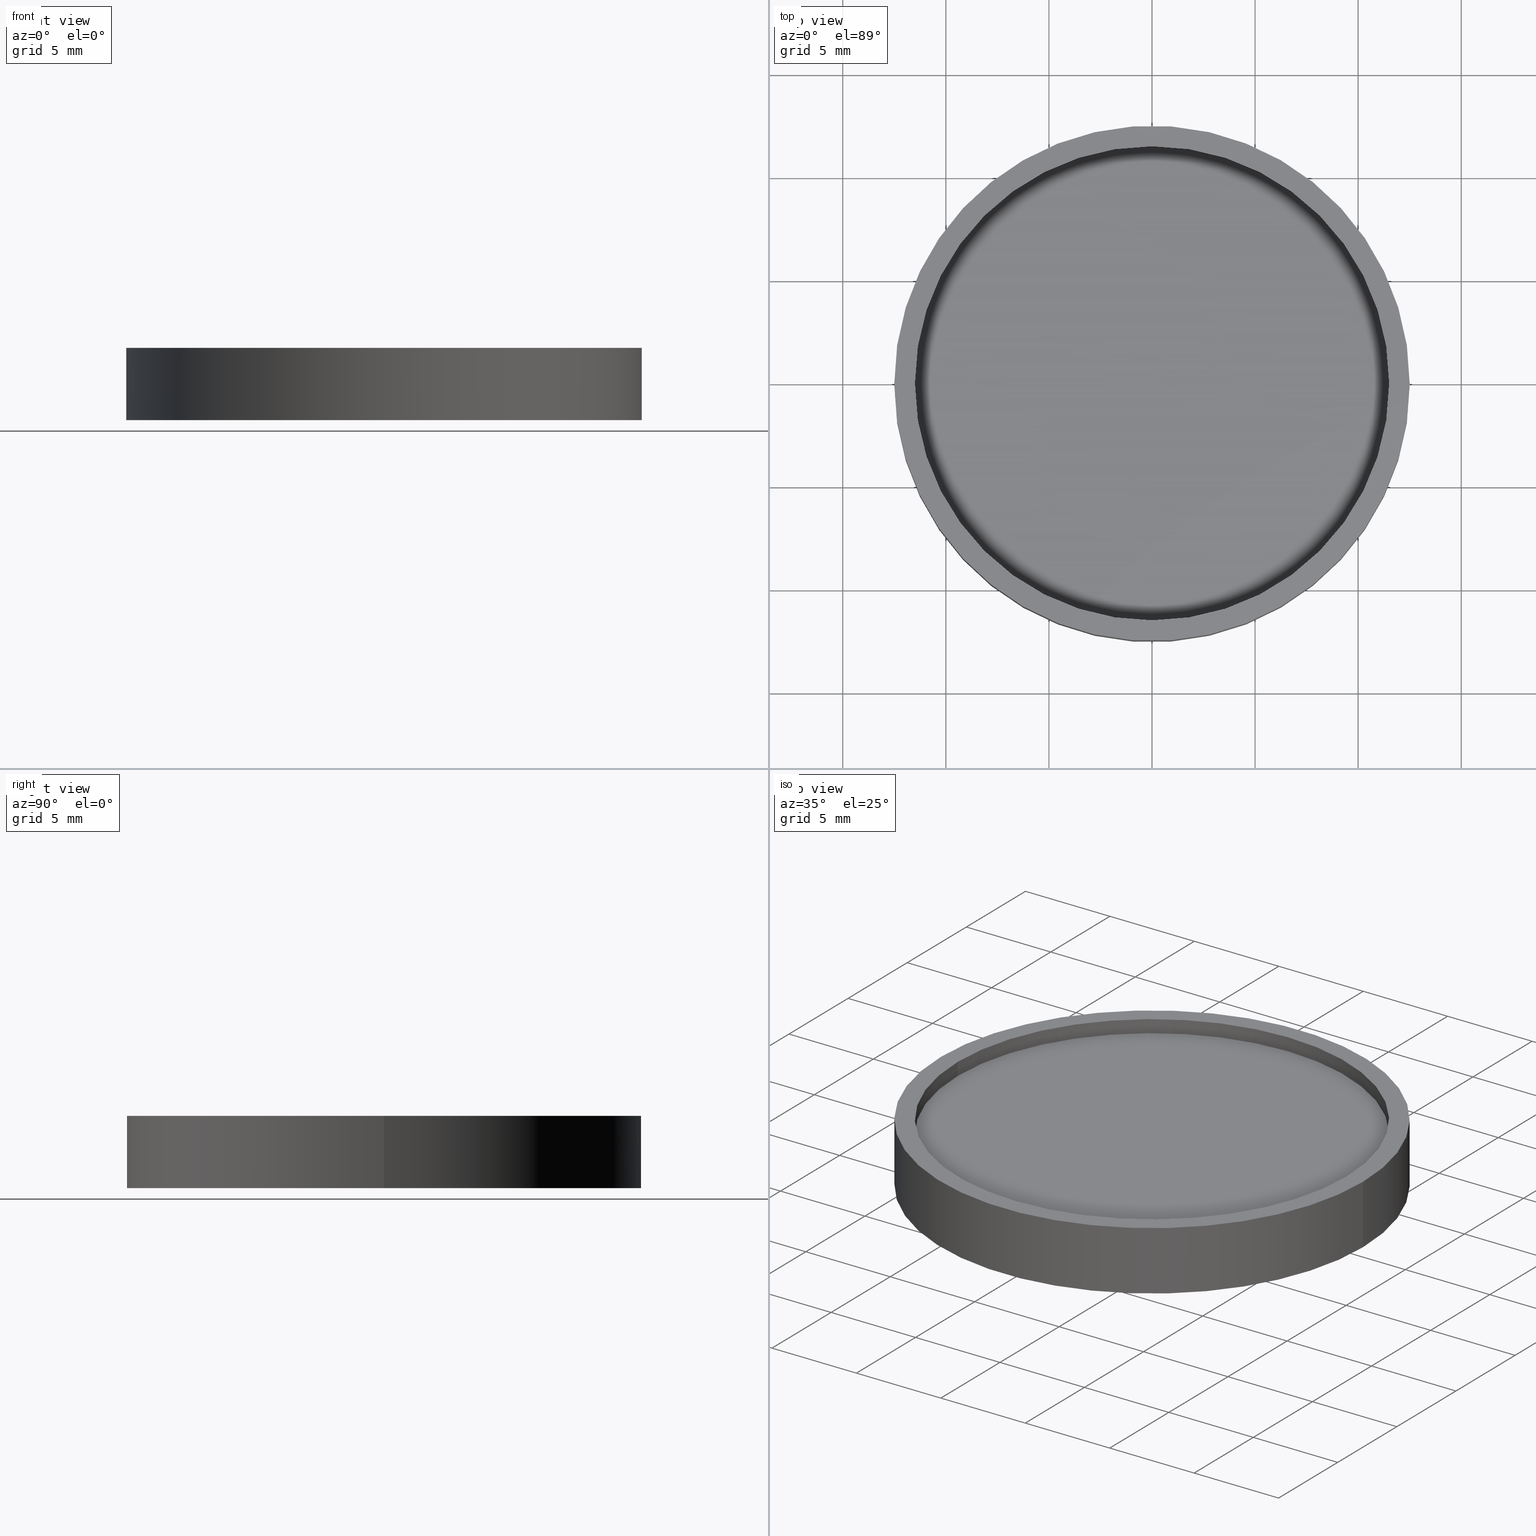
[diagram: canonical four-view strip — front | top / right | iso, engineering-drawing reading convention]
A machine part, canonical four-view strip (front | top / right | iso — engineering-drawing reading convention). The complete STEP part file that produces these views, byte-faithful:
ISO-10303-21;
HEADER;
FILE_DESCRIPTION (( 'STEP AP214' ),
    '1' );
FILE_NAME ('GNIF-020-545-D25.STEP',
    '2024-08-13T06:40:57',
    ( 'Windows User' ),
    ( 'P R C' ),
    'SwSTEP 2.0',
    'SolidWorks 2022',
    '' );
FILE_SCHEMA (( 'AUTOMOTIVE_DESIGN' ));
ENDSEC;

DATA;
#1 = SURFACE_SIDE_STYLE ('',( #417 ) ) ;
#2 =( GEOMETRIC_REPRESENTATION_CONTEXT ( 3 ) GLOBAL_UNCERTAINTY_ASSIGNED_CONTEXT ( ( #205 ) ) GLOBAL_UNIT_ASSIGNED_CONTEXT ( ( #395, #78, #270 ) ) REPRESENTATION_CONTEXT ( 'NONE', 'WORKASPACE' ) );
#3 = STYLED_ITEM ( 'NONE', ( #295 ), #21 ) ;
#4 = SURFACE_STYLE_USAGE ( .BOTH. , #68 ) ;
#5 = AXIS2_PLACEMENT_3D ( 'NONE', #138, #263, #65 ) ;
#6 = PRESENTATION_STYLE_ASSIGNMENT (( #330 ) ) ;
#7 = AXIS2_PLACEMENT_3D ( 'NONE', #103, #171, #297 ) ;
#8 = UNCERTAINTY_MEASURE_WITH_UNIT (LENGTH_MEASURE( 1.000000000000000082E-05 ), #109, 'distance_accuracy_value', 'NONE');
#9 =( NAMED_UNIT ( * ) PLANE_ANGLE_UNIT ( ) SI_UNIT ( $, .RADIAN. ) );
#10 = SURFACE_STYLE_USAGE ( .BOTH. , #104 ) ;
#11 = EDGE_CURVE ( 'NONE', #163, #415, #13, .T. ) ;
#12 = DIRECTION ( 'NONE',  ( 1.000000000000000000, 0.000000000000000000, 0.000000000000000000 ) ) ;
#13 = CIRCLE ( 'NONE', #111, 12.50000000000000000 ) ;
#14 = EDGE_CURVE ( 'NONE', #163, #31, #370, .T. ) ;
#15 = MECHANICAL_DESIGN_GEOMETRIC_PRESENTATION_REPRESENTATION (  '', ( #88 ), #396 ) ;
#16 = SURFACE_SIDE_STYLE ('',( #309 ) ) ;
#17 = FACE_OUTER_BOUND ( 'NONE', #314, .T. ) ;
#18 = FACE_OUTER_BOUND ( 'NONE', #226, .T. ) ;
#19 = ORIENTED_EDGE ( 'NONE', *, *, #14, .T. ) ;
#20 =( NAMED_UNIT ( * ) SI_UNIT ( $, .STERADIAN. ) SOLID_ANGLE_UNIT ( ) );
#21 = ADVANCED_BREP_SHAPE_REPRESENTATION ( 'GNIF-020-545-D25', ( #134, #79 ), #66 ) ;
#22 = DIRECTION ( 'NONE',  ( 0.000000000000000000, 0.000000000000000000, 1.000000000000000000 ) ) ;
#23 = PRODUCT_DEFINITION_FORMATION_WITH_SPECIFIED_SOURCE ( '�κ�', '', #312, .NOT_KNOWN. ) ;
#24 = SURFACE_SIDE_STYLE ('',( #189 ) ) ;
#25 = ORIENTED_EDGE ( 'NONE', *, *, #14, .F. ) ;
#26 = LINE ( 'NONE', #89, #327 ) ;
#27 = CARTESIAN_POINT ( 'NONE',  ( 0.000000000000000000, 0.000000000000000000, 2.750000000000000000 ) ) ;
#28 = ORIENTED_EDGE ( 'NONE', *, *, #34, .T. ) ;
#29 = SURFACE_STYLE_FILL_AREA ( #383 ) ;
#30 = PRESENTATION_STYLE_ASSIGNMENT (( #347 ) ) ;
#31 = VERTEX_POINT ( 'NONE', #97 ) ;
#32 =( GEOMETRIC_REPRESENTATION_CONTEXT ( 3 ) GLOBAL_UNCERTAINTY_ASSIGNED_CONTEXT ( ( #404 ) ) GLOBAL_UNIT_ASSIGNED_CONTEXT ( ( #239, #246, #210 ) ) REPRESENTATION_CONTEXT ( 'NONE', 'WORKASPACE' ) );
#33 =( NAMED_UNIT ( * ) PLANE_ANGLE_UNIT ( ) SI_UNIT ( $, .RADIAN. ) );
#34 = EDGE_CURVE ( 'NONE', #352, #310, #26, .T. ) ;
#35 = AXIS2_PLACEMENT_3D ( 'NONE', #144, #364, #399 ) ;
#36 = FILL_AREA_STYLE_COLOUR ( '', #262 ) ;
#37 = SURFACE_STYLE_FILL_AREA ( #391 ) ;
#38 = MECHANICAL_DESIGN_GEOMETRIC_PRESENTATION_REPRESENTATION (  '', ( #77 ), #147 ) ;
#39 = PRODUCT_CONTEXT ( 'NONE', #130, 'mechanical' ) ;
#40 = CARTESIAN_POINT ( 'NONE',  ( 0.000000000000000000, 0.000000000000000000, 0.000000000000000000 ) ) ;
#41 =( LENGTH_UNIT ( ) NAMED_UNIT ( * ) SI_UNIT ( .MILLI., .METRE. ) );
#42 =( GEOMETRIC_REPRESENTATION_CONTEXT ( 3 ) GLOBAL_UNCERTAINTY_ASSIGNED_CONTEXT ( ( #74 ) ) GLOBAL_UNIT_ASSIGNED_CONTEXT ( ( #92, #283, #345 ) ) REPRESENTATION_CONTEXT ( 'NONE', 'WORKASPACE' ) );
#43 = UNCERTAINTY_MEASURE_WITH_UNIT (LENGTH_MEASURE( 1.000000000000000082E-05 ), #265, 'distance_accuracy_value', 'NONE');
#44 = FILL_AREA_STYLE ('',( #218 ) ) ;
#45 = AXIS2_PLACEMENT_3D ( 'NONE', #27, #22, #224 ) ;
#46 = DIRECTION ( 'NONE',  ( -0.000000000000000000, -0.000000000000000000, 1.000000000000000000 ) ) ;
#47 = PLANE ( 'NONE',  #359 ) ;
#48 = UNCERTAINTY_MEASURE_WITH_UNIT (LENGTH_MEASURE( 1.000000000000000082E-05 ), #41, 'distance_accuracy_value', 'NONE');
#49 = FACE_OUTER_BOUND ( 'NONE', #158, .T. ) ;
#50 = VERTEX_POINT ( 'NONE', #159 ) ;
#51 = SURFACE_SIDE_STYLE ('',( #29 ) ) ;
#52 = FILL_AREA_STYLE_COLOUR ( '', #230 ) ;
#53 = ORIENTED_EDGE ( 'NONE', *, *, #340, .T. ) ;
#54 = DIRECTION ( 'NONE',  ( 1.000000000000000000, 0.000000000000000000, 0.000000000000000000 ) ) ;
#55 = AXIS2_PLACEMENT_3D ( 'NONE', #143, #165, #135 ) ;
#56 = ORIENTED_EDGE ( 'NONE', *, *, #301, .F. ) ;
#57 =( NAMED_UNIT ( * ) PLANE_ANGLE_UNIT ( ) SI_UNIT ( $, .RADIAN. ) );
#58 = ORIENTED_EDGE ( 'NONE', *, *, #388, .F. ) ;
#59 = SURFACE_STYLE_USAGE ( .BOTH. , #243 ) ;
#60 = ORIENTED_EDGE ( 'NONE', *, *, #291, .F. ) ;
#61 = CARTESIAN_POINT ( 'NONE',  ( 0.000000000000000000, 0.000000000000000000, 3.500000000000000000 ) ) ;
#62 = SURFACE_SIDE_STYLE ('',( #289 ) ) ;
#63 = MECHANICAL_DESIGN_GEOMETRIC_PRESENTATION_REPRESENTATION (  '', ( #368 ), #197 ) ;
#64 = CIRCLE ( 'NONE', #300, 12.50000000000000000 ) ;
#65 = DIRECTION ( 'NONE',  ( 1.000000000000000000, 0.000000000000000000, 0.000000000000000000 ) ) ;
#66 =( GEOMETRIC_REPRESENTATION_CONTEXT ( 3 ) GLOBAL_UNCERTAINTY_ASSIGNED_CONTEXT ( ( #80 ) ) GLOBAL_UNIT_ASSIGNED_CONTEXT ( ( #198, #169, #202 ) ) REPRESENTATION_CONTEXT ( 'NONE', 'WORKASPACE' ) );
#67 =( LENGTH_UNIT ( ) NAMED_UNIT ( * ) SI_UNIT ( .MILLI., .METRE. ) );
#68 = SURFACE_SIDE_STYLE ('',( #37 ) ) ;
#69 = STYLED_ITEM ( 'NONE', ( #343 ), #235 ) ;
#70 = CARTESIAN_POINT ( 'NONE',  ( 12.50000000000000000, 1.530808498934191521E-15, 3.500000000000000000 ) ) ;
#71 = PRESENTATION_LAYER_ASSIGNMENT (  '', '', ( #237 ) ) ;
#72 = DIRECTION ( 'NONE',  ( -1.000000000000000000, 0.000000000000000000, 0.000000000000000000 ) ) ;
#73 = VECTOR ( 'NONE', #412, 1000.000000000000000 ) ;
#74 = UNCERTAINTY_MEASURE_WITH_UNIT (LENGTH_MEASURE( 1.000000000000000082E-05 ), #92, 'distance_accuracy_value', 'NONE');
#75 = ADVANCED_FACE ( 'NONE', ( #349 ), #278, .F. ) ;
#76 = DIRECTION ( 'NONE',  ( -1.000000000000000000, 0.000000000000000000, 0.000000000000000000 ) ) ;
#77 = STYLED_ITEM ( 'NONE', ( #6 ), #134 ) ;
#78 =( NAMED_UNIT ( * ) PLANE_ANGLE_UNIT ( ) SI_UNIT ( $, .RADIAN. ) );
#79 = AXIS2_PLACEMENT_3D ( 'NONE', #173, #360, #200 ) ;
#80 = UNCERTAINTY_MEASURE_WITH_UNIT (LENGTH_MEASURE( 1.000000000000000082E-05 ), #198, 'distance_accuracy_value', 'NONE');
#81 =( NAMED_UNIT ( * ) SI_UNIT ( $, .STERADIAN. ) SOLID_ANGLE_UNIT ( ) );
#82 = CARTESIAN_POINT ( 'NONE',  ( 0.000000000000000000, 0.000000000000000000, 3.500000000000000000 ) ) ;
#83 = DIRECTION ( 'NONE',  ( 1.000000000000000000, 0.000000000000000000, 0.000000000000000000 ) ) ;
#84 = COLOUR_RGB ( '',0.2235294117647058654, 0.2235294117647058654, 0.2235294117647058654 ) ;
#85 = COLOUR_RGB ( '',0.2235294117647058654, 0.2235294117647058654, 0.2235294117647058654 ) ;
#86 = ORIENTED_EDGE ( 'NONE', *, *, #320, .F. ) ;
#87 = DIRECTION ( 'NONE',  ( 0.000000000000000000, 0.000000000000000000, 1.000000000000000000 ) ) ;
#88 = STYLED_ITEM ( 'NONE', ( #275 ), #311 ) ;
#89 = CARTESIAN_POINT ( 'NONE',  ( 11.50000000000000000, 1.408343819019456176E-15, 0.7500000000000093259 ) ) ;
#90 = CARTESIAN_POINT ( 'NONE',  ( 11.50000000000000000, 1.454268073987482448E-15, 0.7500000000000000000 ) ) ;
#91 = ORIENTED_EDGE ( 'NONE', *, *, #419, .F. ) ;
#92 =( LENGTH_UNIT ( ) NAMED_UNIT ( * ) SI_UNIT ( .MILLI., .METRE. ) );
#93 = CARTESIAN_POINT ( 'NONE',  ( -11.50000000000000000, 0.000000000000000000, 0.7500000000000093259 ) ) ;
#94 = VECTOR ( 'NONE', #405, 1000.000000000000000 ) ;
#95 = PRESENTATION_LAYER_ASSIGNMENT (  '', '', ( #255 ) ) ;
#96 = ORIENTED_EDGE ( 'NONE', *, *, #329, .F. ) ;
#97 = CARTESIAN_POINT ( 'NONE',  ( -12.50000000000000000, 0.000000000000000000, 0.000000000000000000 ) ) ;
#98 =( LENGTH_UNIT ( ) NAMED_UNIT ( * ) SI_UNIT ( .MILLI., .METRE. ) );
#99 = ORIENTED_EDGE ( 'NONE', *, *, #183, .T. ) ;
#100 = EDGE_CURVE ( 'NONE', #344, #310, #266, .T. ) ;
#101 = CARTESIAN_POINT ( 'NONE',  ( 12.50000000000000000, 1.530808498934191521E-15, 0.000000000000000000 ) ) ;
#102 = CARTESIAN_POINT ( 'NONE',  ( -12.50000000000000000, 0.000000000000000000, 3.500000000000000000 ) ) ;
#103 = CARTESIAN_POINT ( 'NONE',  ( 0.000000000000000000, 0.000000000000000000, 0.7500000000000000000 ) ) ;
#104 = SURFACE_SIDE_STYLE ('',( #196 ) ) ;
#105 = PRESENTATION_LAYER_ASSIGNMENT (  '', '', ( #284 ) ) ;
#106 = PRESENTATION_LAYER_ASSIGNMENT (  '', '', ( #69 ) ) ;
#107 = ADVANCED_FACE ( 'NONE', ( #17 ), #125, .F. ) ;
#108 = PRESENTATION_LAYER_ASSIGNMENT (  '', '', ( #88 ) ) ;
#109 =( LENGTH_UNIT ( ) NAMED_UNIT ( * ) SI_UNIT ( .MILLI., .METRE. ) );
#110 = DIRECTION ( 'NONE',  ( 0.000000000000000000, 0.000000000000000000, 1.000000000000000000 ) ) ;
#111 = AXIS2_PLACEMENT_3D ( 'NONE', #61, #191, #253 ) ;
#112 = LINE ( 'NONE', #335, #324 ) ;
#113 = PRESENTATION_LAYER_ASSIGNMENT (  '', '', ( #77 ) ) ;
#114 = SURFACE_STYLE_USAGE ( .BOTH. , #242 ) ;
#115 = FILL_AREA_STYLE ('',( #177 ) ) ;
#116 = SURFACE_SIDE_STYLE ('',( #206 ) ) ;
#117 = FILL_AREA_STYLE ('',( #277 ) ) ;
#118 = SURFACE_STYLE_USAGE ( .BOTH. , #116 ) ;
#119 = COLOUR_RGB ( '',0.2235294117647058654, 0.2235294117647058654, 0.2235294117647058654 ) ;
#120 = VERTEX_POINT ( 'NONE', #101 ) ;
#121 = ORIENTED_EDGE ( 'NONE', *, *, #268, .T. ) ;
#122 = ORIENTED_EDGE ( 'NONE', *, *, #291, .T. ) ;
#123 =( NAMED_UNIT ( * ) SI_UNIT ( $, .STERADIAN. ) SOLID_ANGLE_UNIT ( ) );
#124 = ORIENTED_EDGE ( 'NONE', *, *, #100, .F. ) ;
#125 = CYLINDRICAL_SURFACE ( 'NONE', #55, 11.50000000000000000 ) ;
#126 = PLANE ( 'NONE',  #248 ) ;
#127 = MECHANICAL_DESIGN_GEOMETRIC_PRESENTATION_REPRESENTATION (  '', ( #141 ), #32 ) ;
#128 = PRESENTATION_STYLE_ASSIGNMENT (( #59 ) ) ;
#129 = CARTESIAN_POINT ( 'NONE',  ( -12.25000000000000711, 0.000000000000000000, 0.000000000000000000 ) ) ;
#130 = APPLICATION_CONTEXT ( 'automotive_design' ) ;
#131 = ORIENTED_EDGE ( 'NONE', *, *, #172, .F. ) ;
#132 = AXIS2_PLACEMENT_3D ( 'NONE', #146, #212, #12 ) ;
#133 = FACE_OUTER_BOUND ( 'NONE', #378, .T. ) ;
#134 = MANIFOLD_SOLID_BREP ( '����1', #199 ) ;
#135 = DIRECTION ( 'NONE',  ( 1.000000000000000000, 0.000000000000000000, 0.000000000000000000 ) ) ;
#136 = FILL_AREA_STYLE_COLOUR ( '', #356 ) ;
#137 = AXIS2_PLACEMENT_3D ( 'NONE', #40, #299, #332 ) ;
#138 = CARTESIAN_POINT ( 'NONE',  ( 0.000000000000000000, 0.000000000000000000, 0.000000000000000000 ) ) ;
#139 = APPLICATION_PROTOCOL_DEFINITION ( 'draft international standard', 'automotive_design', 1998, #130 ) ;
#140 = AXIS2_PLACEMENT_3D ( 'NONE', #160, #286, #384 ) ;
#141 = STYLED_ITEM ( 'NONE', ( #179 ), #229 ) ;
#142 = CIRCLE ( 'NONE', #132, 12.50000000000000000 ) ;
#143 = CARTESIAN_POINT ( 'NONE',  ( 0.000000000000000000, 0.000000000000000000, 2.750000000000000000 ) ) ;
#144 = CARTESIAN_POINT ( 'NONE',  ( 0.000000000000000000, 0.000000000000000000, 2.750000000000000000 ) ) ;
#145 = PRESENTATION_LAYER_ASSIGNMENT (  '', '', ( #400 ) ) ;
#146 = CARTESIAN_POINT ( 'NONE',  ( 0.000000000000000000, 0.000000000000000000, 3.500000000000000000 ) ) ;
#147 =( GEOMETRIC_REPRESENTATION_CONTEXT ( 3 ) GLOBAL_UNCERTAINTY_ASSIGNED_CONTEXT ( ( #175 ) ) GLOBAL_UNIT_ASSIGNED_CONTEXT ( ( #67, #204, #174 ) ) REPRESENTATION_CONTEXT ( 'NONE', 'WORKASPACE' ) );
#148 = FACE_OUTER_BOUND ( 'NONE', #256, .T. ) ;
#149 = APPLICATION_CONTEXT ( 'automotive_design' ) ;
#150 = SURFACE_STYLE_USAGE ( .BOTH. , #16 ) ;
#151 = ORIENTED_EDGE ( 'NONE', *, *, #201, .T. ) ;
#152 = EDGE_CURVE ( 'NONE', #31, #120, #296, .T. ) ;
#153 = CARTESIAN_POINT ( 'NONE',  ( 0.000000000000000000, 0.000000000000000000, 0.7500000000000000000 ) ) ;
#154 = ORIENTED_EDGE ( 'NONE', *, *, #201, .F. ) ;
#155 = ORIENTED_EDGE ( 'NONE', *, *, #260, .F. ) ;
#156 = LINE ( 'NONE', #93, #176 ) ;
#157 = SURFACE_STYLE_USAGE ( .BOTH. , #24 ) ;
#158 = EDGE_LOOP ( 'NONE', ( #409, #122 ) ) ;
#159 = CARTESIAN_POINT ( 'NONE',  ( -11.50000000000000000, 1.408343819019456176E-15, 2.750000000000000000 ) ) ;
#160 = CARTESIAN_POINT ( 'NONE',  ( 0.000000000000000000, 0.000000000000000000, 2.750000000000000000 ) ) ;
#161 = ORIENTED_EDGE ( 'NONE', *, *, #260, .T. ) ;
#162 =( GEOMETRIC_REPRESENTATION_CONTEXT ( 3 ) GLOBAL_UNCERTAINTY_ASSIGNED_CONTEXT ( ( #48 ) ) GLOBAL_UNIT_ASSIGNED_CONTEXT ( ( #41, #241, #238 ) ) REPRESENTATION_CONTEXT ( 'NONE', 'WORKASPACE' ) );
#163 = VERTEX_POINT ( 'NONE', #102 ) ;
#164 = CARTESIAN_POINT ( 'NONE',  ( -11.50000000000000000, 0.000000000000000000, 0.7500000000000000000 ) ) ;
#165 = DIRECTION ( 'NONE',  ( -0.000000000000000000, -0.000000000000000000, 1.000000000000000000 ) ) ;
#166 = CIRCLE ( 'NONE', #35, 11.50000000000000000 ) ;
#167 = FILL_AREA_STYLE ('',( #36 ) ) ;
#168 = PRODUCT_RELATED_PRODUCT_CATEGORY ( 'part', '', ( #312 ) ) ;
#169 =( NAMED_UNIT ( * ) PLANE_ANGLE_UNIT ( ) SI_UNIT ( $, .RADIAN. ) );
#170 = COLOUR_RGB ( '',0.2235294117647058654, 0.2235294117647058654, 0.2235294117647058654 ) ;
#171 = DIRECTION ( 'NONE',  ( 0.000000000000000000, 0.000000000000000000, -1.000000000000000000 ) ) ;
#172 = EDGE_CURVE ( 'NONE', #415, #120, #259, .T. ) ;
#173 = CARTESIAN_POINT ( 'NONE',  ( 0.000000000000000000, 0.000000000000000000, 0.000000000000000000 ) ) ;
#174 =( NAMED_UNIT ( * ) SI_UNIT ( $, .STERADIAN. ) SOLID_ANGLE_UNIT ( ) );
#175 = UNCERTAINTY_MEASURE_WITH_UNIT (LENGTH_MEASURE( 1.000000000000000082E-05 ), #67, 'distance_accuracy_value', 'NONE');
#176 = VECTOR ( 'NONE', #414, 1000.000000000000000 ) ;
#177 = FILL_AREA_STYLE_COLOUR ( '', #84 ) ;
#178 = CARTESIAN_POINT ( 'NONE',  ( 0.000000000000000000, 0.000000000000000000, 2.750000000000000000 ) ) ;
#179 = PRESENTATION_STYLE_ASSIGNMENT (( #114 ) ) ;
#180 = COLOUR_RGB ( '',0.2235294117647058654, 0.2235294117647058654, 0.2235294117647058654 ) ;
#181 = DIRECTION ( 'NONE',  ( 0.000000000000000000, 0.000000000000000000, 1.000000000000000000 ) ) ;
#182 = FILL_AREA_STYLE ('',( #245 ) ) ;
#183 = EDGE_CURVE ( 'NONE', #310, #344, #346, .T. ) ;
#184 = VERTEX_POINT ( 'NONE', #385 ) ;
#185 = DIRECTION ( 'NONE',  ( 1.000000000000000000, 0.000000000000000000, 0.000000000000000000 ) ) ;
#186 = DIRECTION ( 'NONE',  ( -0.000000000000000000, -0.000000000000000000, -1.000000000000000000 ) ) ;
#187 = ORIENTED_EDGE ( 'NONE', *, *, #152, .T. ) ;
#188 = CARTESIAN_POINT ( 'NONE',  ( 0.000000000000000000, 0.000000000000000000, 0.000000000000000000 ) ) ;
#189 = SURFACE_STYLE_FILL_AREA ( #44 ) ;
#190 = ORIENTED_EDGE ( 'NONE', *, *, #172, .T. ) ;
#191 = DIRECTION ( 'NONE',  ( 0.000000000000000000, 0.000000000000000000, 1.000000000000000000 ) ) ;
#192 = PRESENTATION_LAYER_ASSIGNMENT (  '', '', ( #3 ) ) ;
#193 = ORIENTED_EDGE ( 'NONE', *, *, #34, .F. ) ;
#194 = EDGE_LOOP ( 'NONE', ( #96, #28, #124, #225 ) ) ;
#195 = ADVANCED_FACE ( 'NONE', ( #231, #228 ), #354, .F. ) ;
#196 = SURFACE_STYLE_FILL_AREA ( #389 ) ;
#197 =( GEOMETRIC_REPRESENTATION_CONTEXT ( 3 ) GLOBAL_UNCERTAINTY_ASSIGNED_CONTEXT ( ( #8 ) ) GLOBAL_UNIT_ASSIGNED_CONTEXT ( ( #109, #9, #81 ) ) REPRESENTATION_CONTEXT ( 'NONE', 'WORKASPACE' ) );
#198 =( LENGTH_UNIT ( ) NAMED_UNIT ( * ) SI_UNIT ( .MILLI., .METRE. ) );
#199 = CLOSED_SHELL ( 'NONE', ( #75, #107, #235, #392, #229, #195, #240, #350, #371, #311 ) ) ;
#200 = DIRECTION ( 'NONE',  ( 1.000000000000000000, 0.000000000000000000, 0.000000000000000000 ) ) ;
#201 = EDGE_CURVE ( 'NONE', #120, #31, #64, .T. ) ;
#202 =( NAMED_UNIT ( * ) SI_UNIT ( $, .STERADIAN. ) SOLID_ANGLE_UNIT ( ) );
#203 = CARTESIAN_POINT ( 'NONE',  ( 12.50000000000000000, 1.530808498934191521E-15, 3.500000000000000000 ) ) ;
#204 =( NAMED_UNIT ( * ) PLANE_ANGLE_UNIT ( ) SI_UNIT ( $, .RADIAN. ) );
#205 = UNCERTAINTY_MEASURE_WITH_UNIT (LENGTH_MEASURE( 1.000000000000000082E-05 ), #395, 'distance_accuracy_value', 'NONE');
#206 = SURFACE_STYLE_FILL_AREA ( #115 ) ;
#207 = DIRECTION ( 'NONE',  ( 0.000000000000000000, 0.000000000000000000, 1.000000000000000000 ) ) ;
#208 =( GEOMETRIC_REPRESENTATION_CONTEXT ( 3 ) GLOBAL_UNCERTAINTY_ASSIGNED_CONTEXT ( ( #211 ) ) GLOBAL_UNIT_ASSIGNED_CONTEXT ( ( #98, #33, #319 ) ) REPRESENTATION_CONTEXT ( 'NONE', 'WORKASPACE' ) );
#209 = FACE_OUTER_BOUND ( 'NONE', #406, .T. ) ;
#210 =( NAMED_UNIT ( * ) SI_UNIT ( $, .STERADIAN. ) SOLID_ANGLE_UNIT ( ) );
#211 = UNCERTAINTY_MEASURE_WITH_UNIT (LENGTH_MEASURE( 1.000000000000000082E-05 ), #98, 'distance_accuracy_value', 'NONE');
#212 = DIRECTION ( 'NONE',  ( 0.000000000000000000, 0.000000000000000000, 1.000000000000000000 ) ) ;
#213 = AXIS2_PLACEMENT_3D ( 'NONE', #402, #272, #76 ) ;
#214 = DIRECTION ( 'NONE',  ( 0.000000000000000000, 0.000000000000000000, -1.000000000000000000 ) ) ;
#215 = ORIENTED_EDGE ( 'NONE', *, *, #11, .F. ) ;
#216 =( NAMED_UNIT ( * ) PLANE_ANGLE_UNIT ( ) SI_UNIT ( $, .RADIAN. ) );
#217 = CARTESIAN_POINT ( 'NONE',  ( 11.50000000000000000, 0.000000000000000000, 2.750000000000000000 ) ) ;
#218 = FILL_AREA_STYLE_COLOUR ( '', #180 ) ;
#219 = EDGE_LOOP ( 'NONE', ( #161, #281 ) ) ;
#220 = CARTESIAN_POINT ( 'NONE',  ( -12.50000000000000000, 0.000000000000000000, 3.500000000000000000 ) ) ;
#221 = CARTESIAN_POINT ( 'NONE',  ( 0.000000000000000000, 0.000000000000000000, 3.500000000000000000 ) ) ;
#222 = VERTEX_POINT ( 'NONE', #164 ) ;
#223 = SURFACE_STYLE_FILL_AREA ( #117 ) ;
#224 = DIRECTION ( 'NONE',  ( 1.000000000000000000, 0.000000000000000000, 0.000000000000000000 ) ) ;
#225 = ORIENTED_EDGE ( 'NONE', *, *, #340, .F. ) ;
#226 = EDGE_LOOP ( 'NONE', ( #131, #215, #19, #187 ) ) ;
#227 = PLANE ( 'NONE',  #140 ) ;
#228 = FACE_OUTER_BOUND ( 'NONE', #287, .T. ) ;
#229 = ADVANCED_FACE ( 'NONE', ( #403, #49 ), #47, .T. ) ;
#230 = COLOUR_RGB ( '',0.2235294117647058654, 0.2235294117647058654, 0.2235294117647058654 ) ;
#231 = FACE_BOUND ( 'NONE', #413, .T. ) ;
#232 = PRESENTATION_LAYER_ASSIGNMENT (  '', '', ( #141 ) ) ;
#233 = CIRCLE ( 'NONE', #45, 11.50000000000000000 ) ;
#234 = DIRECTION ( 'NONE',  ( 1.000000000000000000, 0.000000000000000000, 0.000000000000000000 ) ) ;
#235 = ADVANCED_FACE ( 'NONE', ( #250 ), #374, .T. ) ;
#236 = DIRECTION ( 'NONE',  ( 1.000000000000000000, 0.000000000000000000, -0.000000000000000000 ) ) ;
#237 = STYLED_ITEM ( 'NONE', ( #323 ), #195 ) ;
#238 =( NAMED_UNIT ( * ) SI_UNIT ( $, .STERADIAN. ) SOLID_ANGLE_UNIT ( ) );
#239 =( LENGTH_UNIT ( ) NAMED_UNIT ( * ) SI_UNIT ( .MILLI., .METRE. ) );
#240 = ADVANCED_FACE ( 'NONE', ( #209 ), #366, .F. ) ;
#241 =( NAMED_UNIT ( * ) PLANE_ANGLE_UNIT ( ) SI_UNIT ( $, .RADIAN. ) );
#242 = SURFACE_SIDE_STYLE ('',( #271 ) ) ;
#243 = SURFACE_SIDE_STYLE ('',( #223 ) ) ;
#244 = VECTOR ( 'NONE', #294, 1000.000000000000000 ) ;
#245 = FILL_AREA_STYLE_COLOUR ( '', #308 ) ;
#246 =( NAMED_UNIT ( * ) PLANE_ANGLE_UNIT ( ) SI_UNIT ( $, .RADIAN. ) );
#247 = EDGE_LOOP ( 'NONE', ( #60, #190, #151, #25 ) ) ;
#248 = AXIS2_PLACEMENT_3D ( 'NONE', #254, #214, #313 ) ;
#249 = DIRECTION ( 'NONE',  ( 0.000000000000000000, 0.000000000000000000, -1.000000000000000000 ) ) ;
#250 = FACE_OUTER_BOUND ( 'NONE', #247, .T. ) ;
#251 = ORIENTED_EDGE ( 'NONE', *, *, #301, .T. ) ;
#252 = VERTEX_POINT ( 'NONE', #304 ) ;
#253 = DIRECTION ( 'NONE',  ( 1.000000000000000000, 0.000000000000000000, 0.000000000000000000 ) ) ;
#254 = CARTESIAN_POINT ( 'NONE',  ( 0.000000000000000000, 0.000000000000000000, 0.7500000000000000000 ) ) ;
#255 = STYLED_ITEM ( 'NONE', ( #128 ), #107 ) ;
#256 = EDGE_LOOP ( 'NONE', ( #193, #91, #53, #372 ) ) ;
#257 = LINE ( 'NONE', #217, #73 ) ;
#258 = AXIS2_PLACEMENT_3D ( 'NONE', #337, #249, #322 ) ;
#259 = LINE ( 'NONE', #203, #244 ) ;
#260 = EDGE_CURVE ( 'NONE', #290, #50, #166, .T. ) ;
#261 =( NAMED_UNIT ( * ) PLANE_ANGLE_UNIT ( ) SI_UNIT ( $, .RADIAN. ) );
#262 = COLOUR_RGB ( '',1.000000000000000000, 1.000000000000000000, 1.000000000000000000 ) ;
#263 = DIRECTION ( 'NONE',  ( 0.000000000000000000, 0.000000000000000000, 1.000000000000000000 ) ) ;
#264 = CIRCLE ( 'NONE', #316, 11.50000000000000000 ) ;
#265 =( LENGTH_UNIT ( ) NAMED_UNIT ( * ) SI_UNIT ( .MILLI., .METRE. ) );
#266 = CIRCLE ( 'NONE', #369, 12.25000000000000711 ) ;
#267 = CIRCLE ( 'NONE', #361, 11.50000000000000000 ) ;
#268 = EDGE_CURVE ( 'NONE', #50, #252, #112, .T. ) ;
#269 = UNCERTAINTY_MEASURE_WITH_UNIT (LENGTH_MEASURE( 1.000000000000000082E-05 ), #386, 'distance_accuracy_value', 'NONE');
#270 =( NAMED_UNIT ( * ) SI_UNIT ( $, .STERADIAN. ) SOLID_ANGLE_UNIT ( ) );
#271 = SURFACE_STYLE_FILL_AREA ( #273 ) ;
#272 = DIRECTION ( 'NONE',  ( -0.000000000000000000, -0.000000000000000000, -1.000000000000000000 ) ) ;
#273 = FILL_AREA_STYLE ('',( #367 ) ) ;
#274 = CARTESIAN_POINT ( 'NONE',  ( 0.000000000000000000, 0.000000000000000000, 0.7500000000000093259 ) ) ;
#275 = PRESENTATION_STYLE_ASSIGNMENT (( #150 ) ) ;
#276 = ORIENTED_EDGE ( 'NONE', *, *, #320, .T. ) ;
#277 = FILL_AREA_STYLE_COLOUR ( '', #85 ) ;
#278 = CONICAL_SURFACE ( 'NONE', #401, 11.50000000000000000, 0.7853981633974471688 ) ;
#279 = DIRECTION ( 'NONE',  ( -1.000000000000000000, 0.000000000000000000, 0.000000000000000000 ) ) ;
#280 = CARTESIAN_POINT ( 'NONE',  ( 0.000000000000000000, 0.000000000000000000, 3.500000000000000000 ) ) ;
#281 = ORIENTED_EDGE ( 'NONE', *, *, #325, .T. ) ;
#282 = MECHANICAL_DESIGN_GEOMETRIC_PRESENTATION_REPRESENTATION (  '', ( #3 ), #390 ) ;
#283 =( NAMED_UNIT ( * ) PLANE_ANGLE_UNIT ( ) SI_UNIT ( $, .RADIAN. ) );
#284 = STYLED_ITEM ( 'NONE', ( #30 ), #392 ) ;
#285 = ORIENTED_EDGE ( 'NONE', *, *, #152, .F. ) ;
#286 = DIRECTION ( 'NONE',  ( 0.000000000000000000, 0.000000000000000000, 1.000000000000000000 ) ) ;
#287 = EDGE_LOOP ( 'NONE', ( #285, #154 ) ) ;
#288 = MECHANICAL_DESIGN_GEOMETRIC_PRESENTATION_REPRESENTATION (  '', ( #69 ), #162 ) ;
#289 = SURFACE_STYLE_FILL_AREA ( #342 ) ;
#290 = VERTEX_POINT ( 'NONE', #305 ) ;
#291 = EDGE_CURVE ( 'NONE', #415, #163, #142, .T. ) ;
#292 = FILL_AREA_STYLE_COLOUR ( '', #363 ) ;
#293 = AXIS2_PLACEMENT_3D ( 'NONE', #178, #397, #234 ) ;
#294 = DIRECTION ( 'NONE',  ( -0.000000000000000000, -0.000000000000000000, -1.000000000000000000 ) ) ;
#295 = PRESENTATION_STYLE_ASSIGNMENT (( #4 ) ) ;
#296 = CIRCLE ( 'NONE', #5, 12.50000000000000000 ) ;
#297 = DIRECTION ( 'NONE',  ( -1.000000000000000000, 0.000000000000000000, 0.000000000000000000 ) ) ;
#298 = APPLICATION_PROTOCOL_DEFINITION ( 'draft international standard', 'automotive_design', 1998, #149 ) ;
#299 = DIRECTION ( 'NONE',  ( 0.000000000000000000, 0.000000000000000000, 1.000000000000000000 ) ) ;
#300 = AXIS2_PLACEMENT_3D ( 'NONE', #362, #207, #333 ) ;
#301 = EDGE_CURVE ( 'NONE', #252, #184, #267, .T. ) ;
#302 = PRESENTATION_STYLE_ASSIGNMENT (( #118 ) ) ;
#303 = CIRCLE ( 'NONE', #365, 11.50000000000000000 ) ;
#304 = CARTESIAN_POINT ( 'NONE',  ( -11.50000000000000000, 1.408343819019456176E-15, 3.500000000000000000 ) ) ;
#305 = CARTESIAN_POINT ( 'NONE',  ( 11.50000000000000000, 0.000000000000000000, 2.750000000000000000 ) ) ;
#306 = AXIS2_PLACEMENT_3D ( 'NONE', #398, #110, #236 ) ;
#307 = DIRECTION ( 'NONE',  ( 0.000000000000000000, 0.000000000000000000, 1.000000000000000000 ) ) ;
#308 = COLOUR_RGB ( '',0.2235294117647058654, 0.2235294117647058654, 0.2235294117647058654 ) ;
#309 = SURFACE_STYLE_FILL_AREA ( #182 ) ;
#310 = VERTEX_POINT ( 'NONE', #336 ) ;
#311 = ADVANCED_FACE ( 'NONE', ( #148 ), #339, .F. ) ;
#312 = PRODUCT ( 'GNIF-020-545-D25', 'GNIF-020-545-D25', '', ( #39 ) ) ;
#313 = DIRECTION ( 'NONE',  ( -1.000000000000000000, 0.000000000000000000, -0.000000000000000000 ) ) ;
#314 = EDGE_LOOP ( 'NONE', ( #341, #121, #251, #86 ) ) ;
#315 = DIRECTION ( 'NONE',  ( -1.000000000000000000, 0.000000000000000000, 0.000000000000000000 ) ) ;
#316 = AXIS2_PLACEMENT_3D ( 'NONE', #153, #377, #279 ) ;
#317 = ORIENTED_EDGE ( 'NONE', *, *, #100, .T. ) ;
#318 = FILL_AREA_STYLE_COLOUR ( '', #170 ) ;
#319 =( NAMED_UNIT ( * ) SI_UNIT ( $, .STERADIAN. ) SOLID_ANGLE_UNIT ( ) );
#320 = EDGE_CURVE ( 'NONE', #290, #184, #257, .T. ) ;
#321 = ORIENTED_EDGE ( 'NONE', *, *, #419, .T. ) ;
#322 = DIRECTION ( 'NONE',  ( -1.000000000000000000, 0.000000000000000000, 0.000000000000000000 ) ) ;
#323 = PRESENTATION_STYLE_ASSIGNMENT (( #10 ) ) ;
#324 = VECTOR ( 'NONE', #46, 1000.000000000000000 ) ;
#325 = EDGE_CURVE ( 'NONE', #50, #290, #233, .T. ) ;
#326 =( NAMED_UNIT ( * ) SI_UNIT ( $, .STERADIAN. ) SOLID_ANGLE_UNIT ( ) );
#327 = VECTOR ( 'NONE', #338, 1000.000000000000000 ) ;
#328 = PRODUCT_DEFINITION_SHAPE ( 'NONE', 'NONE',  #358 ) ;
#329 = EDGE_CURVE ( 'NONE', #352, #222, #264, .T. ) ;
#330 = SURFACE_STYLE_USAGE ( .BOTH. , #1 ) ;
#331 = UNCERTAINTY_MEASURE_WITH_UNIT (LENGTH_MEASURE( 1.000000000000000082E-05 ), #407, 'distance_accuracy_value', 'NONE');
#332 = DIRECTION ( 'NONE',  ( 1.000000000000000000, 0.000000000000000000, 0.000000000000000000 ) ) ;
#333 = DIRECTION ( 'NONE',  ( 1.000000000000000000, 0.000000000000000000, 0.000000000000000000 ) ) ;
#334 = CIRCLE ( 'NONE', #7, 11.50000000000000000 ) ;
#335 = CARTESIAN_POINT ( 'NONE',  ( -11.50000000000000000, 1.408343819019456176E-15, 2.750000000000000000 ) ) ;
#336 = CARTESIAN_POINT ( 'NONE',  ( 12.25000000000000711, 1.500192328955508523E-15, 0.000000000000000000 ) ) ;
#337 = CARTESIAN_POINT ( 'NONE',  ( 0.000000000000000000, 0.000000000000000000, 0.7500000000000093259 ) ) ;
#338 = DIRECTION ( 'NONE',  ( 0.7071067811865467956, 8.659560562354925463E-17, -0.7071067811865483499 ) ) ;
#339 = CONICAL_SURFACE ( 'NONE', #258, 11.50000000000000000, 0.7853981633974471688 ) ;
#340 = EDGE_CURVE ( 'NONE', #222, #344, #156, .T. ) ;
#341 = ORIENTED_EDGE ( 'NONE', *, *, #325, .F. ) ;
#342 = FILL_AREA_STYLE ('',( #52 ) ) ;
#343 = PRESENTATION_STYLE_ASSIGNMENT (( #157 ) ) ;
#344 = VERTEX_POINT ( 'NONE', #129 ) ;
#345 =( NAMED_UNIT ( * ) SI_UNIT ( $, .STERADIAN. ) SOLID_ANGLE_UNIT ( ) );
#346 = CIRCLE ( 'NONE', #137, 12.25000000000000711 ) ;
#347 = SURFACE_STYLE_USAGE ( .BOTH. , #62 ) ;
#348 = ORIENTED_EDGE ( 'NONE', *, *, #329, .T. ) ;
#349 = FACE_OUTER_BOUND ( 'NONE', #194, .T. ) ;
#350 = ADVANCED_FACE ( 'NONE', ( #373 ), #227, .T. ) ;
#351 = DIRECTION ( 'NONE',  ( 0.000000000000000000, 0.000000000000000000, 1.000000000000000000 ) ) ;
#352 = VERTEX_POINT ( 'NONE', #90 ) ;
#353 = CYLINDRICAL_SURFACE ( 'NONE', #357, 12.50000000000000000 ) ;
#354 = PLANE ( 'NONE',  #306 ) ;
#355 = MECHANICAL_DESIGN_GEOMETRIC_PRESENTATION_REPRESENTATION (  '', ( #255 ), #387 ) ;
#356 = COLOUR_RGB ( '',1.000000000000000000, 1.000000000000000000, 1.000000000000000000 ) ;
#357 = AXIS2_PLACEMENT_3D ( 'NONE', #418, #186, #72 ) ;
#358 = PRODUCT_DEFINITION ( 'δ֪', '', #23, #394 ) ;
#359 = AXIS2_PLACEMENT_3D ( 'NONE', #280, #307, #408 ) ;
#360 = DIRECTION ( 'NONE',  ( 0.000000000000000000, 0.000000000000000000, 1.000000000000000000 ) ) ;
#361 = AXIS2_PLACEMENT_3D ( 'NONE', #82, #181, #83 ) ;
#362 = CARTESIAN_POINT ( 'NONE',  ( 0.000000000000000000, 0.000000000000000000, 0.000000000000000000 ) ) ;
#363 = COLOUR_RGB ( '',0.2235294117647058654, 0.2235294117647058654, 0.2235294117647058654 ) ;
#364 = DIRECTION ( 'NONE',  ( 0.000000000000000000, 0.000000000000000000, 1.000000000000000000 ) ) ;
#365 = AXIS2_PLACEMENT_3D ( 'NONE', #221, #351, #54 ) ;
#366 = CYLINDRICAL_SURFACE ( 'NONE', #293, 11.50000000000000000 ) ;
#367 = FILL_AREA_STYLE_COLOUR ( '', #119 ) ;
#368 = STYLED_ITEM ( 'NONE', ( #302 ), #240 ) ;
#369 = AXIS2_PLACEMENT_3D ( 'NONE', #188, #87, #185 ) ;
#370 = LINE ( 'NONE', #220, #94 ) ;
#371 = ADVANCED_FACE ( 'NONE', ( #133 ), #126, .T. ) ;
#372 = ORIENTED_EDGE ( 'NONE', *, *, #183, .F. ) ;
#373 = FACE_OUTER_BOUND ( 'NONE', #219, .T. ) ;
#374 = CYLINDRICAL_SURFACE ( 'NONE', #213, 12.50000000000000000 ) ;
#375 = ORIENTED_EDGE ( 'NONE', *, *, #268, .F. ) ;
#376 = SURFACE_STYLE_USAGE ( .BOTH. , #51 ) ;
#377 = DIRECTION ( 'NONE',  ( 0.000000000000000000, 0.000000000000000000, -1.000000000000000000 ) ) ;
#378 = EDGE_LOOP ( 'NONE', ( #321, #348 ) ) ;
#379 = PRESENTATION_STYLE_ASSIGNMENT (( #376 ) ) ;
#380 = MECHANICAL_DESIGN_GEOMETRIC_PRESENTATION_REPRESENTATION (  '', ( #400 ), #42 ) ;
#381 = MECHANICAL_DESIGN_GEOMETRIC_PRESENTATION_REPRESENTATION (  '', ( #237 ), #2 ) ;
#382 = EDGE_LOOP ( 'NONE', ( #58, #56 ) ) ;
#383 = FILL_AREA_STYLE ('',( #318 ) ) ;
#384 = DIRECTION ( 'NONE',  ( 1.000000000000000000, 0.000000000000000000, -0.000000000000000000 ) ) ;
#385 = CARTESIAN_POINT ( 'NONE',  ( 11.50000000000000000, 0.000000000000000000, 3.500000000000000000 ) ) ;
#386 =( LENGTH_UNIT ( ) NAMED_UNIT ( * ) SI_UNIT ( .MILLI., .METRE. ) );
#387 =( GEOMETRIC_REPRESENTATION_CONTEXT ( 3 ) GLOBAL_UNCERTAINTY_ASSIGNED_CONTEXT ( ( #331 ) ) GLOBAL_UNIT_ASSIGNED_CONTEXT ( ( #407, #216, #20 ) ) REPRESENTATION_CONTEXT ( 'NONE', 'WORKASPACE' ) );
#388 = EDGE_CURVE ( 'NONE', #184, #252, #303, .T. ) ;
#389 = FILL_AREA_STYLE ('',( #292 ) ) ;
#390 =( GEOMETRIC_REPRESENTATION_CONTEXT ( 3 ) GLOBAL_UNCERTAINTY_ASSIGNED_CONTEXT ( ( #43 ) ) GLOBAL_UNIT_ASSIGNED_CONTEXT ( ( #265, #261, #326 ) ) REPRESENTATION_CONTEXT ( 'NONE', 'WORKASPACE' ) );
#391 = FILL_AREA_STYLE ('',( #136 ) ) ;
#392 = ADVANCED_FACE ( 'NONE', ( #18 ), #353, .T. ) ;
#393 = PRESENTATION_LAYER_ASSIGNMENT (  '', '', ( #368 ) ) ;
#394 = PRODUCT_DEFINITION_CONTEXT ( 'detailed design', #149, 'design' ) ;
#395 =( LENGTH_UNIT ( ) NAMED_UNIT ( * ) SI_UNIT ( .MILLI., .METRE. ) );
#396 =( GEOMETRIC_REPRESENTATION_CONTEXT ( 3 ) GLOBAL_UNCERTAINTY_ASSIGNED_CONTEXT ( ( #269 ) ) GLOBAL_UNIT_ASSIGNED_CONTEXT ( ( #386, #57, #123 ) ) REPRESENTATION_CONTEXT ( 'NONE', 'WORKASPACE' ) );
#397 = DIRECTION ( 'NONE',  ( -0.000000000000000000, -0.000000000000000000, 1.000000000000000000 ) ) ;
#398 = CARTESIAN_POINT ( 'NONE',  ( 0.000000000000000000, 0.000000000000000000, 0.000000000000000000 ) ) ;
#399 = DIRECTION ( 'NONE',  ( 1.000000000000000000, 0.000000000000000000, 0.000000000000000000 ) ) ;
#400 = STYLED_ITEM ( 'NONE', ( #379 ), #75 ) ;
#401 = AXIS2_PLACEMENT_3D ( 'NONE', #274, #410, #315 ) ;
#402 = CARTESIAN_POINT ( 'NONE',  ( 0.000000000000000000, 0.000000000000000000, 3.500000000000000000 ) ) ;
#403 = FACE_BOUND ( 'NONE', #382, .T. ) ;
#404 = UNCERTAINTY_MEASURE_WITH_UNIT (LENGTH_MEASURE( 1.000000000000000082E-05 ), #239, 'distance_accuracy_value', 'NONE');
#405 = DIRECTION ( 'NONE',  ( -0.000000000000000000, -0.000000000000000000, -1.000000000000000000 ) ) ;
#406 = EDGE_LOOP ( 'NONE', ( #375, #155, #276, #416 ) ) ;
#407 =( LENGTH_UNIT ( ) NAMED_UNIT ( * ) SI_UNIT ( .MILLI., .METRE. ) );
#408 = DIRECTION ( 'NONE',  ( 1.000000000000000000, 0.000000000000000000, -0.000000000000000000 ) ) ;
#409 = ORIENTED_EDGE ( 'NONE', *, *, #11, .T. ) ;
#410 = DIRECTION ( 'NONE',  ( 0.000000000000000000, 0.000000000000000000, -1.000000000000000000 ) ) ;
#411 = MECHANICAL_DESIGN_GEOMETRIC_PRESENTATION_REPRESENTATION (  '', ( #284 ), #208 ) ;
#412 = DIRECTION ( 'NONE',  ( -0.000000000000000000, -0.000000000000000000, 1.000000000000000000 ) ) ;
#413 = EDGE_LOOP ( 'NONE', ( #317, #99 ) ) ;
#414 = DIRECTION ( 'NONE',  ( -0.7071067811865467956, 0.000000000000000000, -0.7071067811865483499 ) ) ;
#415 = VERTEX_POINT ( 'NONE', #70 ) ;
#416 = ORIENTED_EDGE ( 'NONE', *, *, #388, .T. ) ;
#417 = SURFACE_STYLE_FILL_AREA ( #167 ) ;
#418 = CARTESIAN_POINT ( 'NONE',  ( 0.000000000000000000, 0.000000000000000000, 3.500000000000000000 ) ) ;
#419 = EDGE_CURVE ( 'NONE', #222, #352, #334, .T. ) ;
#420 = SHAPE_DEFINITION_REPRESENTATION ( #328, #21 ) ;
ENDSEC;
END-ISO-10303-21;
